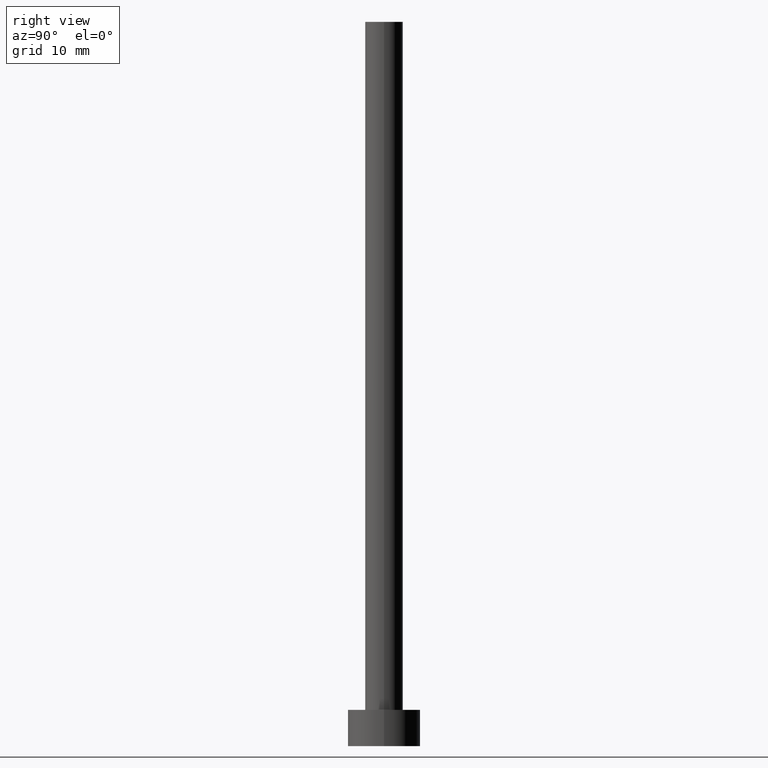
[diagram: clean part render]
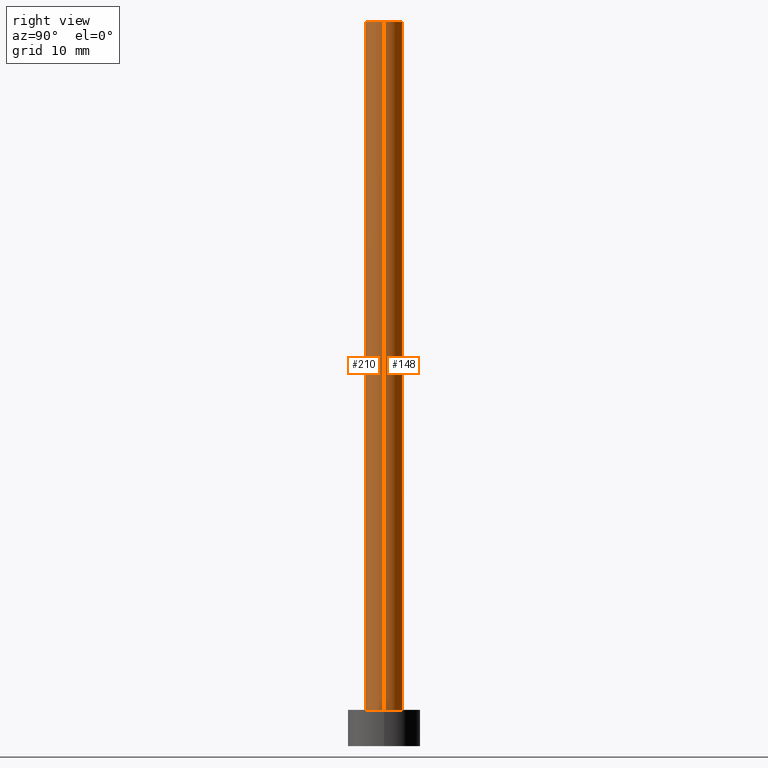
[diagram: same view with one multi-face feature highlighted, each face labeled with its STEP entity id]
A machine part, right view. The highlighted faces form ONE feature: a constant-radius fillet chain: 2 tangent blend faces with common blend radius 2.6 mm. The faces share edges in the B-rep.
Their STEP definitions:
[1] entity #210 (Cylinder):
#8 = DIRECTION ( 'NONE',  ( -0.000000000000000000, -0.000000000000000000, -1.000000000000000000 ) ) ;
#12 = CARTESIAN_POINT ( 'NONE',  ( -2.600000000000000089, 0.000000000000000000, 100.0000000000000000 ) ) ;
#28 = CYLINDRICAL_SURFACE ( 'NONE', #218, 2.600000000000000089 ) ;
#29 = DIRECTION ( 'NONE',  ( 0.000000000000000000, 0.000000000000000000, 1.000000000000000000 ) ) ;
#42 = ORIENTED_EDGE ( 'NONE', *, *, #88, .T. ) ;
#47 = VERTEX_POINT ( 'NONE', #193 ) ;
#49 = LINE ( 'NONE', #12, #156 ) ;
#61 = CIRCLE ( 'NONE', #239, 2.600000000000000089 ) ;
#62 = EDGE_LOOP ( 'NONE', ( #187, #83, #182, #42 ) ) ;
#65 = CARTESIAN_POINT ( 'NONE',  ( -2.600000000000000089, 0.000000000000000000, 5.000000000000000000 ) ) ;
#68 = DIRECTION ( 'NONE',  ( 1.000000000000000000, 0.000000000000000000, 0.000000000000000000 ) ) ;
#80 = VERTEX_POINT ( 'NONE', #65 ) ;
#83 = ORIENTED_EDGE ( 'NONE', *, *, #151, .F. ) ;
#88 = EDGE_CURVE ( 'NONE', #80, #145, #108, .T. ) ;
#89 = DIRECTION ( 'NONE',  ( 1.000000000000000000, 0.000000000000000000, 0.000000000000000000 ) ) ;
#90 = CARTESIAN_POINT ( 'NONE',  ( 0.000000000000000000, 0.000000000000000000, 100.0000000000000000 ) ) ;
#92 = DIRECTION ( 'NONE',  ( 0.000000000000000000, 0.000000000000000000, 1.000000000000000000 ) ) ;
#97 = CARTESIAN_POINT ( 'NONE',  ( -2.600000000000000089, 0.000000000000000000, 100.0000000000000000 ) ) ;
#106 = CARTESIAN_POINT ( 'NONE',  ( 2.600000000000000089, 3.184081677783118191E-16, 100.0000000000000000 ) ) ;
#107 = DIRECTION ( 'NONE',  ( -1.000000000000000000, 0.000000000000000000, 0.000000000000000000 ) ) ;
#108 = CIRCLE ( 'NONE', #119, 2.600000000000000089 ) ;
#119 = AXIS2_PLACEMENT_3D ( 'NONE', #228, #92, #89 ) ;
#126 = FACE_OUTER_BOUND ( 'NONE', #62, .T. ) ;
#128 = VECTOR ( 'NONE', #8, 1000.000000000000000 ) ;
#145 = VERTEX_POINT ( 'NONE', #150 ) ;
#150 = CARTESIAN_POINT ( 'NONE',  ( 2.600000000000000089, 3.184081677783118191E-16, 5.000000000000000000 ) ) ;
#151 = EDGE_CURVE ( 'NONE', #241, #47, #61, .T. ) ;
#155 = EDGE_CURVE ( 'NONE', #47, #145, #215, .T. ) ;
#156 = VECTOR ( 'NONE', #175, 1000.000000000000000 ) ;
#175 = DIRECTION ( 'NONE',  ( -0.000000000000000000, -0.000000000000000000, -1.000000000000000000 ) ) ;
#182 = ORIENTED_EDGE ( 'NONE', *, *, #192, .T. ) ;
#187 = ORIENTED_EDGE ( 'NONE', *, *, #155, .F. ) ;
#192 = EDGE_CURVE ( 'NONE', #241, #80, #49, .T. ) ;
#193 = CARTESIAN_POINT ( 'NONE',  ( 2.600000000000000089, 3.184081677783118191E-16, 100.0000000000000000 ) ) ;
#210 = ADVANCED_FACE ( 'NONE', ( #126 ), #28, .T. ) ;
#211 = CARTESIAN_POINT ( 'NONE',  ( 0.000000000000000000, 0.000000000000000000, 100.0000000000000000 ) ) ;
#215 = LINE ( 'NONE', #106, #128 ) ;
#218 = AXIS2_PLACEMENT_3D ( 'NONE', #90, #246, #107 ) ;
#228 = CARTESIAN_POINT ( 'NONE',  ( 0.000000000000000000, 0.000000000000000000, 5.000000000000000000 ) ) ;
#239 = AXIS2_PLACEMENT_3D ( 'NONE', #211, #29, #68 ) ;
#241 = VERTEX_POINT ( 'NONE', #97 ) ;
#246 = DIRECTION ( 'NONE',  ( -0.000000000000000000, -0.000000000000000000, -1.000000000000000000 ) ) ;
[2] entity #148 (Cylinder):
#8 = DIRECTION ( 'NONE',  ( -0.000000000000000000, -0.000000000000000000, -1.000000000000000000 ) ) ;
#9 = FACE_OUTER_BOUND ( 'NONE', #143, .T. ) ;
#12 = CARTESIAN_POINT ( 'NONE',  ( -2.600000000000000089, 0.000000000000000000, 100.0000000000000000 ) ) ;
#17 = DIRECTION ( 'NONE',  ( 0.000000000000000000, 0.000000000000000000, 1.000000000000000000 ) ) ;
#30 = CYLINDRICAL_SURFACE ( 'NONE', #247, 2.600000000000000089 ) ;
#34 = CIRCLE ( 'NONE', #147, 2.600000000000000089 ) ;
#47 = VERTEX_POINT ( 'NONE', #193 ) ;
#49 = LINE ( 'NONE', #12, #156 ) ;
#57 = DIRECTION ( 'NONE',  ( -0.000000000000000000, -0.000000000000000000, -1.000000000000000000 ) ) ;
#65 = CARTESIAN_POINT ( 'NONE',  ( -2.600000000000000089, 0.000000000000000000, 5.000000000000000000 ) ) ;
#66 = CARTESIAN_POINT ( 'NONE',  ( 0.000000000000000000, 0.000000000000000000, 5.000000000000000000 ) ) ;
#80 = VERTEX_POINT ( 'NONE', #65 ) ;
#95 = DIRECTION ( 'NONE',  ( 1.000000000000000000, 0.000000000000000000, 0.000000000000000000 ) ) ;
#97 = CARTESIAN_POINT ( 'NONE',  ( -2.600000000000000089, 0.000000000000000000, 100.0000000000000000 ) ) ;
#101 = ORIENTED_EDGE ( 'NONE', *, *, #236, .T. ) ;
#106 = CARTESIAN_POINT ( 'NONE',  ( 2.600000000000000089, 3.184081677783118191E-16, 100.0000000000000000 ) ) ;
#109 = EDGE_CURVE ( 'NONE', #47, #241, #216, .T. ) ;
#125 = ORIENTED_EDGE ( 'NONE', *, *, #192, .F. ) ;
#128 = VECTOR ( 'NONE', #8, 1000.000000000000000 ) ;
#131 = DIRECTION ( 'NONE',  ( -1.000000000000000000, 0.000000000000000000, 0.000000000000000000 ) ) ;
#141 = ORIENTED_EDGE ( 'NONE', *, *, #155, .T. ) ;
#143 = EDGE_LOOP ( 'NONE', ( #167, #141, #101, #125 ) ) ;
#145 = VERTEX_POINT ( 'NONE', #150 ) ;
#147 = AXIS2_PLACEMENT_3D ( 'NONE', #66, #17, #95 ) ;
#148 = ADVANCED_FACE ( 'NONE', ( #9 ), #30, .T. ) ;
#150 = CARTESIAN_POINT ( 'NONE',  ( 2.600000000000000089, 3.184081677783118191E-16, 5.000000000000000000 ) ) ;
#155 = EDGE_CURVE ( 'NONE', #47, #145, #215, .T. ) ;
#156 = VECTOR ( 'NONE', #175, 1000.000000000000000 ) ;
#167 = ORIENTED_EDGE ( 'NONE', *, *, #109, .F. ) ;
#174 = DIRECTION ( 'NONE',  ( 1.000000000000000000, 0.000000000000000000, 0.000000000000000000 ) ) ;
#175 = DIRECTION ( 'NONE',  ( -0.000000000000000000, -0.000000000000000000, -1.000000000000000000 ) ) ;
#192 = EDGE_CURVE ( 'NONE', #241, #80, #49, .T. ) ;
#193 = CARTESIAN_POINT ( 'NONE',  ( 2.600000000000000089, 3.184081677783118191E-16, 100.0000000000000000 ) ) ;
#213 = CARTESIAN_POINT ( 'NONE',  ( 0.000000000000000000, 0.000000000000000000, 100.0000000000000000 ) ) ;
#215 = LINE ( 'NONE', #106, #128 ) ;
#216 = CIRCLE ( 'NONE', #253, 2.600000000000000089 ) ;
#230 = DIRECTION ( 'NONE',  ( 0.000000000000000000, 0.000000000000000000, 1.000000000000000000 ) ) ;
#232 = CARTESIAN_POINT ( 'NONE',  ( 0.000000000000000000, 0.000000000000000000, 100.0000000000000000 ) ) ;
#236 = EDGE_CURVE ( 'NONE', #145, #80, #34, .T. ) ;
#241 = VERTEX_POINT ( 'NONE', #97 ) ;
#247 = AXIS2_PLACEMENT_3D ( 'NONE', #232, #57, #131 ) ;
#253 = AXIS2_PLACEMENT_3D ( 'NONE', #213, #230, #174 ) ;